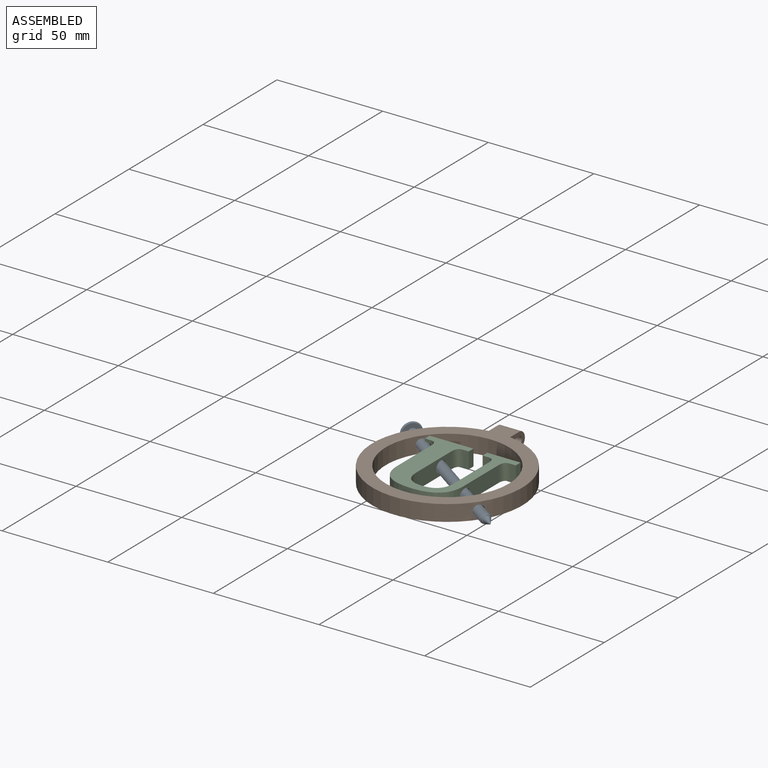
[diagram: assembled view]
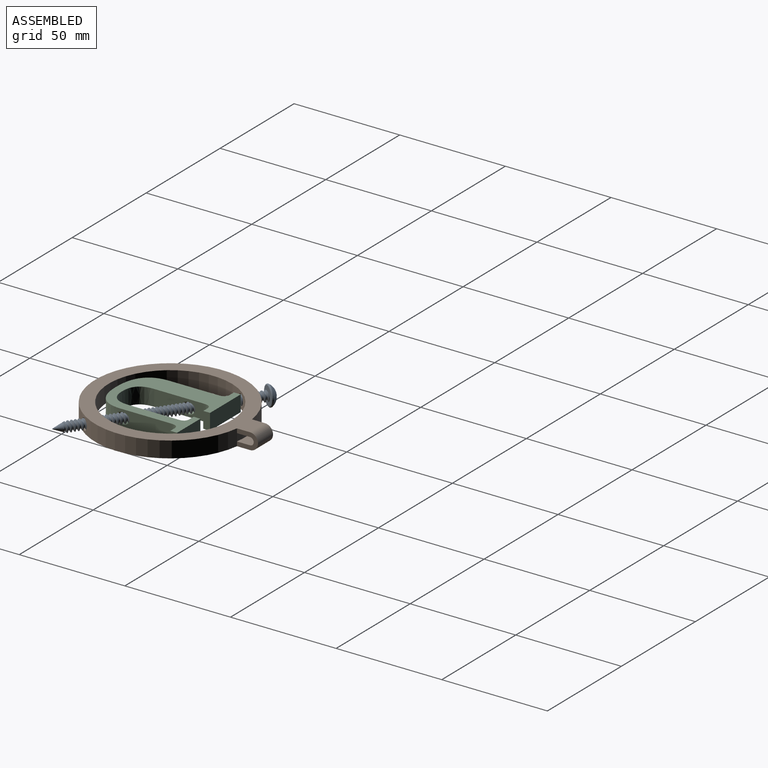
[diagram: assembled view, second angle]
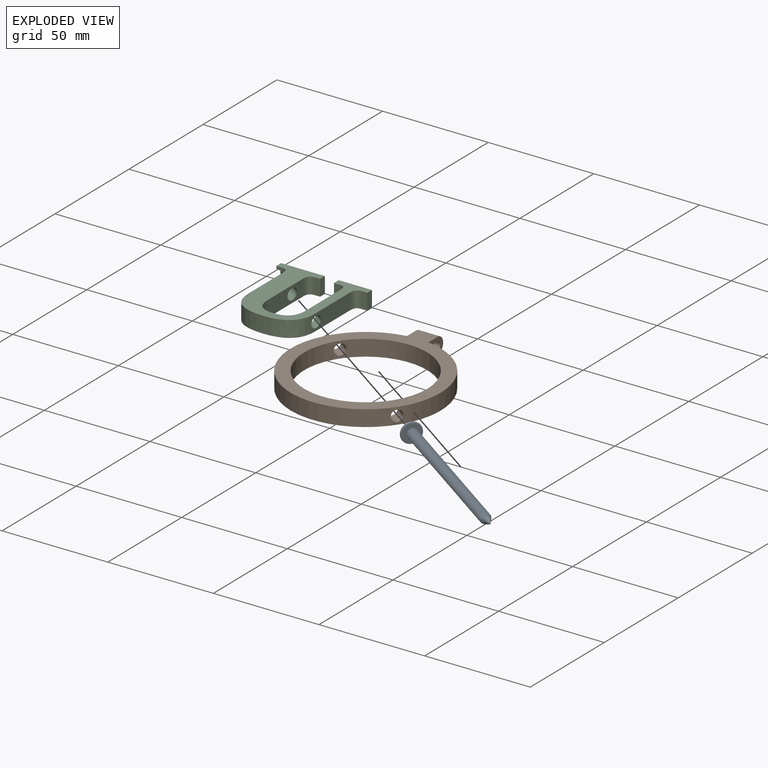
[diagram: exploded view]
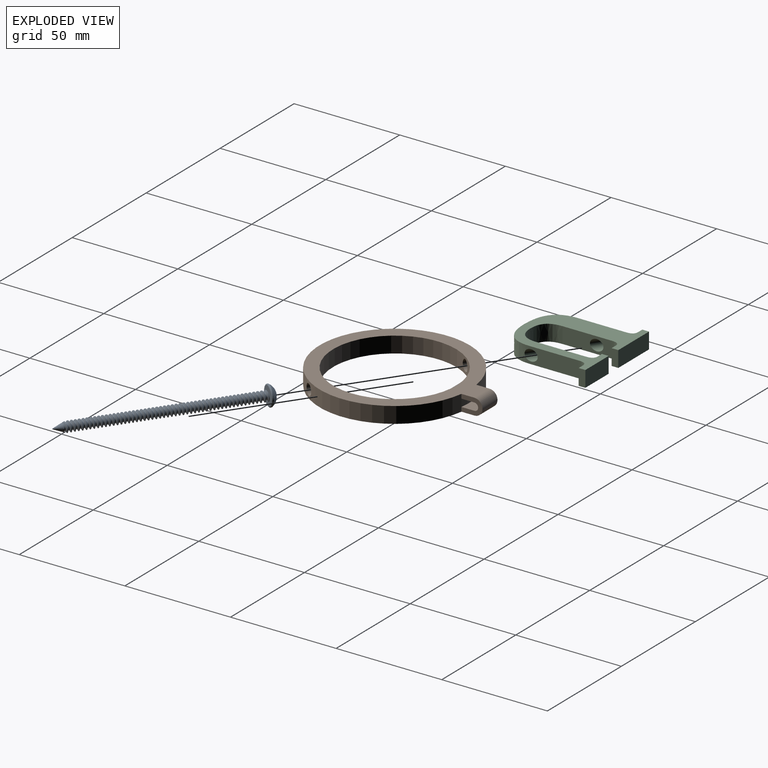
[diagram: exploded view, second angle]
ASSEMBLY  parts=3 mates=2
PART A: 136 faces, bbox 10.7x10.7x92.5 mm
  f0: cylinder r=1.55mm len=85.47mm, axis (0,0,-1), area 207.7mm2, adj f2,f3,f4,f5,f6,f9,f10,f11
  f1: cylinder r=2.41mm len=83.38mm, axis (0,0,-1), area 158mm2, adj f2,f4,f6,f9,f10,f11,f12,f13
  f2: bspline ~5.57x4.83mm, area 12.5mm2, adj f0,f1,f3,f109,f112
  f3: bspline ~5.57x4.83mm, area 4.8mm2, adj f0,f2,f112,f113
  f4: bspline ~5.57x4.83mm, area 8.5mm2, adj f0,f1,f5,f111,f112,f113
  f5: bspline ~4.88x4.83mm, area 1.4mm2, adj f0,f4,f113
  f6: plane 8.8x8.8mm, normal (0,0,-1), area 43.2mm2, adj f0,f1,f7,f11,f12
  f7: torus R=4.19mm, axis (0,0,-1), area 33.8mm2, adj f6,f8
  f8: sphere r=5.53mm, area 73.7mm2, adj f7,f115,f116,f117,f118,f119,f120,f122
  f9: bspline ~5.57x4.83mm, area 18.8mm2, adj f0,f1,f11,f13
  f10: bspline ~5.57x4.83mm, area 18.8mm2, adj f0,f1,f12,f14
  f11: bspline ~5.57x4.83mm, area 10.4mm2, adj f0,f1,f6,f9
  f12: bspline ~4.88x4.83mm, area 5.2mm2, adj f0,f1,f6,f10
  f13: bspline ~5.57x4.83mm, area 12.5mm2, adj f0,f1,f9,f15
  f14: bspline ~5.57x4.83mm, area 12.5mm2, adj f0,f1,f10,f16
  f15: bspline ~5.57x4.83mm, area 12.5mm2, adj f0,f1,f13,f17
  f16: bspline ~5.57x4.83mm, area 12.5mm2, adj f0,f1,f14,f18
  f17: bspline ~5.57x4.83mm, area 12.5mm2, adj f0,f1,f15,f19
  f18: bspline ~5.57x4.83mm, area 12.5mm2, adj f0,f1,f16,f20
  f19: bspline ~5.57x4.83mm, area 12.5mm2, adj f0,f1,f17,f21
  f20: bspline ~5.57x4.83mm, area 12.5mm2, adj f0,f1,f18,f22
  f21: bspline ~5.57x4.83mm, area 12.5mm2, adj f0,f1,f19,f23
  f22: bspline ~5.57x4.83mm, area 12.5mm2, adj f0,f1,f20,f24
  f23: bspline ~5.57x4.83mm, area 12.5mm2, adj f0,f1,f21,f25
  f24: bspline ~5.57x4.83mm, area 12.5mm2, adj f0,f1,f22,f26
  f25: bspline ~5.57x4.83mm, area 12.5mm2, adj f0,f1,f23,f27
  f26: bspline ~5.57x4.83mm, area 12.5mm2, adj f0,f1,f24,f28
  f27: bspline ~5.57x4.83mm, area 12.5mm2, adj f0,f1,f25,f29
  f28: bspline ~5.57x4.83mm, area 12.5mm2, adj f0,f1,f26,f30
  f29: bspline ~5.57x4.83mm, area 12.5mm2, adj f0,f1,f27,f31
  f30: bspline ~5.57x4.83mm, area 12.5mm2, adj f0,f1,f28,f32
  f31: bspline ~5.57x4.83mm, area 12.5mm2, adj f0,f1,f29,f33
  f32: bspline ~5.57x4.83mm, area 12.5mm2, adj f0,f1,f30,f34
  f33: bspline ~5.57x4.83mm, area 12.5mm2, adj f0,f1,f31,f35
  f34: bspline ~5.57x4.83mm, area 12.5mm2, adj f0,f1,f32,f36
  f35: bspline ~5.57x4.83mm, area 12.5mm2, adj f0,f1,f33,f37
  f36: bspline ~5.57x4.83mm, area 12.5mm2, adj f0,f1,f34,f38
  f37: bspline ~5.57x4.83mm, area 12.5mm2, adj f0,f1,f35,f39
  f38: bspline ~5.57x4.83mm, area 12.5mm2, adj f0,f1,f36,f40
  f39: bspline ~5.57x4.83mm, area 12.5mm2, adj f0,f1,f37,f41
  f40: bspline ~5.57x4.83mm, area 12.5mm2, adj f0,f1,f38,f42
  f41: bspline ~5.57x4.83mm, area 12.5mm2, adj f0,f1,f39,f43
  f42: bspline ~5.57x4.83mm, area 12.5mm2, adj f0,f1,f40,f44
  f43: bspline ~5.57x4.83mm, area 12.5mm2, adj f0,f1,f41,f45
  f44: bspline ~5.57x4.83mm, area 12.5mm2, adj f0,f1,f42,f46
  f45: bspline ~5.57x4.83mm, area 12.5mm2, adj f0,f1,f43,f47
  f46: bspline ~5.57x4.83mm, area 12.5mm2, adj f0,f1,f44,f48
  f47: bspline ~5.57x4.83mm, area 12.5mm2, adj f0,f1,f45,f49
  f48: bspline ~5.57x4.83mm, area 12.5mm2, adj f0,f1,f46,f50
  f49: bspline ~5.57x4.83mm, area 12.5mm2, adj f0,f1,f47,f51
  f50: bspline ~5.57x4.83mm, area 12.5mm2, adj f0,f1,f48,f52
  f51: bspline ~5.57x4.83mm, area 12.5mm2, adj f0,f1,f49,f53
  f52: bspline ~5.57x4.83mm, area 12.5mm2, adj f0,f1,f50,f54
  f53: bspline ~5.57x4.83mm, area 12.5mm2, adj f0,f1,f51,f55
  f54: bspline ~5.57x4.83mm, area 12.5mm2, adj f0,f1,f52,f56
  f55: bspline ~5.57x4.83mm, area 12.5mm2, adj f0,f1,f53,f57
  f56: bspline ~5.57x4.83mm, area 12.5mm2, adj f0,f1,f54,f58
  f57: bspline ~5.57x4.83mm, area 12.5mm2, adj f0,f1,f55,f59
  f58: bspline ~5.57x4.83mm, area 12.5mm2, adj f0,f1,f56,f60
  f59: bspline ~5.57x4.83mm, area 12.5mm2, adj f0,f1,f57,f61
  f60: bspline ~5.57x4.83mm, area 12.5mm2, adj f0,f1,f58,f62
  f61: bspline ~5.57x4.83mm, area 12.5mm2, adj f0,f1,f59,f63
  f62: bspline ~5.57x4.83mm, area 12.5mm2, adj f0,f1,f60,f64
  f63: bspline ~5.57x4.83mm, area 12.5mm2, adj f0,f1,f61,f65
  f64: bspline ~5.57x4.83mm, area 12.5mm2, adj f0,f1,f62,f66
  f65: bspline ~5.57x4.83mm, area 12.5mm2, adj f0,f1,f63,f67
  f66: bspline ~5.57x4.83mm, area 12.5mm2, adj f0,f1,f64,f68
  f67: bspline ~5.57x4.83mm, area 12.5mm2, adj f0,f1,f65,f69
  f68: bspline ~5.57x4.83mm, area 12.5mm2, adj f0,f1,f66,f70
  f69: bspline ~5.57x4.83mm, area 12.5mm2, adj f0,f1,f67,f71
  f70: bspline ~5.57x4.83mm, area 12.5mm2, adj f0,f1,f68,f72
  f71: bspline ~5.57x4.83mm, area 12.5mm2, adj f0,f1,f69,f73
  f72: bspline ~5.57x4.83mm, area 12.5mm2, adj f0,f1,f70,f74
  f73: bspline ~5.57x4.83mm, area 12.5mm2, adj f0,f1,f71,f75
  f74: bspline ~5.57x4.83mm, area 12.5mm2, adj f0,f1,f72,f76
  f75: bspline ~5.57x4.83mm, area 12.5mm2, adj f0,f1,f73,f77
  f76: bspline ~5.57x4.83mm, area 12.5mm2, adj f0,f1,f74,f78
  f77: bspline ~5.57x4.83mm, area 12.5mm2, adj f0,f1,f75,f79
  f78: bspline ~5.57x4.83mm, area 12.5mm2, adj f0,f1,f76,f80
  f79: bspline ~5.57x4.83mm, area 12.5mm2, adj f0,f1,f77,f81
  f80: bspline ~5.57x4.83mm, area 12.5mm2, adj f0,f1,f78,f82
  f81: bspline ~5.57x4.83mm, area 12.5mm2, adj f0,f1,f79,f83
  f82: bspline ~5.57x4.83mm, area 12.5mm2, adj f0,f1,f80,f84
  f83: bspline ~5.57x4.83mm, area 12.5mm2, adj f0,f1,f81,f85
  f84: bspline ~5.57x4.83mm, area 12.5mm2, adj f0,f1,f82,f86
  f85: bspline ~5.57x4.83mm, area 12.5mm2, adj f0,f1,f83,f87
  f86: bspline ~5.57x4.83mm, area 12.5mm2, adj f0,f1,f84,f88
  f87: bspline ~5.57x4.83mm, area 12.5mm2, adj f0,f1,f85,f89
  f88: bspline ~5.57x4.83mm, area 12.5mm2, adj f0,f1,f86,f90
  f89: bspline ~5.57x4.83mm, area 12.5mm2, adj f0,f1,f87,f91
  f90: bspline ~5.57x4.83mm, area 12.5mm2, adj f0,f1,f88,f92
  f91: bspline ~5.57x4.83mm, area 12.5mm2, adj f0,f1,f89,f93
  f92: bspline ~5.57x4.83mm, area 12.5mm2, adj f0,f1,f90,f94
  f93: bspline ~5.57x4.83mm, area 12.5mm2, adj f0,f1,f91,f95
  f94: bspline ~5.57x4.83mm, area 12.5mm2, adj f0,f1,f92,f96
  f95: bspline ~5.57x4.83mm, area 12.5mm2, adj f0,f1,f93,f97
  f96: bspline ~5.57x4.83mm, area 12.5mm2, adj f0,f1,f94,f98
  f97: bspline ~5.57x4.83mm, area 12.5mm2, adj f0,f1,f95,f99
  f98: bspline ~5.57x4.83mm, area 12.5mm2, adj f0,f1,f96,f100
  f99: bspline ~5.57x4.83mm, area 12.5mm2, adj f0,f1,f97,f101
  f100: bspline ~5.57x4.83mm, area 12.5mm2, adj f0,f1,f98,f102
  f101: bspline ~5.57x4.83mm, area 12.5mm2, adj f0,f1,f99,f103
  f102: bspline ~5.57x4.83mm, area 12.5mm2, adj f0,f1,f100,f104
  f103: bspline ~5.57x4.83mm, area 12.5mm2, adj f0,f1,f101,f105
  f104: bspline ~5.57x4.83mm, area 12.5mm2, adj f0,f1,f102,f106
  f105: bspline ~5.57x4.83mm, area 12.5mm2, adj f0,f1,f103,f107
  f106: bspline ~5.57x4.83mm, area 12.5mm2, adj f0,f1,f104,f108
  f107: bspline ~5.57x4.83mm, area 12.5mm2, adj f0,f1,f105,f109
  f108: bspline ~5.57x4.83mm, area 12.5mm2, adj f0,f1,f106,f110
  f109: bspline ~5.57x4.83mm, area 12.5mm2, adj f0,f1,f2,f107
  f110: bspline ~5.57x4.83mm, area 12.5mm2, adj f0,f1,f108,f111
  f111: bspline ~5.57x4.83mm, area 12.5mm2, adj f0,f1,f4,f110
  f112: cone r=2.41mm half-angle=22.5deg, axis (0,0,1), area 5.7mm2, adj f1,f2,f3,f4,f113
  f113: cone r=2.41mm half-angle=22.5deg, axis (0,0,1), area 25.5mm2, adj f0,f3,f4,f5,f112,f114
  f114: plane 0.25x0.25mm, normal (0,0,-1), area 0.1mm2, adj f113
  f115: cone r=3.16mm half-angle=25deg, axis (0,0,1), area 0.4mm2, adj f8,f116,f121,f126
  f116: plane 0.98x0.83mm, normal (-0.98,0,0.17), area 0.5mm2, adj f8,f115,f117,f121
  f117: plane 1.18x1.12mm, normal (-0.91,-0.38,0.17), area 0.9mm2, adj f8,f116,f118,f121
  f118: plane 1.18x1.12mm, normal (-0.38,-0.91,0.17), area 0.9mm2, adj f8,f117,f119,f121
  f119: plane 0.98x0.83mm, normal (0,-0.98,0.17), area 0.5mm2, adj f8,f118,f120,f121
  f120: cone r=3.16mm half-angle=25deg, axis (0,0,1), area 0.4mm2, adj f8,f119,f121,f132
  f121: plane 5.27x5.27mm, normal (0,0,1), area 10.6mm2, adj f115,f116,f117,f118,f119,f120,f122,f123
  f122: cone r=3.16mm half-angle=25deg, axis (0,0,1), area 0.4mm2, adj f8,f121,f123,f131
  f123: plane 0.98x0.83mm, normal (0,-0.98,0.17), area 0.5mm2, adj f8,f121,f122,f124
  f124: plane 1.18x1.12mm, normal (0.38,-0.91,0.17), area 0.9mm2, adj f8,f121,f123,f125
  f125: plane 1.18x1.12mm, normal (0.91,-0.38,0.17), area 0.9mm2, adj f8,f121,f124,f126
  f126: plane 0.98x0.83mm, normal (0.98,0,0.17), area 0.5mm2, adj f8,f115,f121,f125
  f127: cone r=3.16mm half-angle=25deg, axis (0,0,1), area 0.4mm2, adj f8,f121,f128,f135
  f128: plane 0.98x0.83mm, normal (0.98,0,0.17), area 0.5mm2, adj f8,f121,f127,f129
  f129: plane 1.18x1.12mm, normal (0.91,0.38,0.17), area 0.9mm2, adj f8,f121,f128,f130
  f130: plane 1.18x1.12mm, normal (0.38,0.91,0.17), area 0.9mm2, adj f8,f121,f129,f131
  f131: plane 0.98x0.83mm, normal (0,0.98,0.17), area 0.5mm2, adj f8,f121,f122,f130
  f132: plane 0.98x0.83mm, normal (0,0.98,0.17), area 0.5mm2, adj f8,f120,f121,f133
  f133: plane 1.18x1.12mm, normal (-0.38,0.91,0.17), area 0.9mm2, adj f8,f121,f132,f134
  f134: plane 1.18x1.12mm, normal (-0.91,0.38,0.17), area 0.9mm2, adj f8,f121,f133,f135
  f135: plane 0.98x0.83mm, normal (-0.98,0,0.17), area 0.5mm2, adj f8,f121,f127,f134
PART B: 12 faces, bbox 71x80.6x7.6 mm
  f0: cylinder r=35.5mm len=71mm, axis (0,0,-1), area 1615.7mm2, adj f2,f3,f4,f5,f6,f7,f8,f9
  f1: cylinder r=29.15mm len=58.3mm, axis (0,0,-1), area 1353.1mm2, adj f2,f3,f4,f5
  f2: plane 76.78x71mm, normal (0,0,1), area 1349.7mm2, adj f0,f1,f6,f7,f11
  f3: plane 76.78x71mm, normal (0,0,-1), area 1349.7mm2, adj f0,f1,f6,f7,f11
  f4: cylinder r=2.6mm len=8.28mm, axis (-0.82,0.57,0), area 104mm2, adj f0,f1
  f5: cylinder r=2.6mm len=8.28mm, axis (-0.82,0.57,0), area 104mm2, adj f0,f1
  f6: plane 9.96x7.62mm, normal (1,0,0), area 42.8mm2, adj f0,f2,f3,f8,f9,f10,f11
  f7: plane 9.96x7.62mm, normal (-1,0,0), area 42.8mm2, adj f0,f2,f3,f8,f9,f10,f11
  f8: plane 10.16x6.15mm, normal (0,0,-1), area 60mm2, adj f0,f6,f7,f10
  f9: plane 10.16x6.15mm, normal (0,0,1), area 60mm2, adj f0,f6,f7,f10
  f10: cylinder r=1.78mm len=10.16mm, axis (1,0,0), area 56.8mm2, adj f6,f7,f8,f9
  f11: cylinder r=3.81mm len=10.16mm, axis (1,0,0), area 121.6mm2, adj f2,f3,f6,f7
PART C: 55 faces, bbox 46.2x43.7x7.8 mm
  f0: plane 2.74x2.03mm, normal (0,-1,0), area 3.8mm2, adj f1,f30,f52,f54
  f1: extruded ~2.59x1.16mm, area 2.6mm2, adj f0,f2,f52,f54
  f2: extruded ~2.89x0.97mm, area 3mm2, adj f1,f3,f52,f54
  f3: extruded ~2.89x1.1mm, area 3.2mm2, adj f2,f4,f52,f54
  f4: extruded ~2.06x1.92mm, area 3.2mm2, adj f3,f36,f52,f54
  f5: plane 7.62x3.18mm, normal (1,0,0), area 24.2mm2, adj f6,f50,f51,f52
  f6: plane 15.76x7.62mm, normal (0,1,0), area 120.1mm2, adj f5,f7,f51,f52
  f7: plane 7.62x3.18mm, normal (-1,0,0), area 24.2mm2, adj f6,f8,f51,f52
  f8: plane 7.62x2.53mm, normal (0,-1,0), area 19.3mm2, adj f7,f9,f51,f52
  f9: extruded ~7.62x1.18mm, area 9mm2, adj f8,f10,f51,f52
  f10: extruded ~7.62x0.98mm, area 8.5mm2, adj f9,f11,f51,f52
  f11: extruded ~7.62x1.1mm, area 9.9mm2, adj f10,f12,f51,f52
  f12: extruded ~7.62x1.92mm, area 14.8mm2, adj f11,f13,f51,f52
  f13: plane 23.61x7.62mm, normal (-1,0,0), area 153.9mm2, adj f12,f14,f51,f52,f53
  f14: extruded ~7.62x3.97mm, area 30.7mm2, adj f13,f15,f51,f52
  f15: extruded ~7.62x2.77mm, area 25.2mm2, adj f14,f16,f51,f52
  f16: extruded ~7.62x2.75mm, area 24.5mm2, adj f15,f17,f51,f52
  f17: extruded ~7.62x3.61mm, area 27.9mm2, adj f16,f18,f51,f52
  f18: extruded ~7.62x3.71mm, area 28.5mm2, adj f17,f19,f51,f52
  f19: extruded ~7.62x2.82mm, area 24.6mm2, adj f18,f20,f51,f52
  f20: extruded ~7.62x2.76mm, area 25.4mm2, adj f19,f21,f51,f52
  f21: extruded ~7.62x4.25mm, area 32.9mm2, adj f20,f22,f51,f52
  f22: plane 23.26x7.62mm, normal (1,0,0), area 151.2mm2, adj f21,f23,f51,f52,f54
  f23: extruded ~7.62x2.06mm, area 15.8mm2, adj f22,f24,f51,f52
  f24: extruded ~7.62x1.18mm, area 10.4mm2, adj f23,f25,f51,f52
  f25: extruded ~7.62x0.98mm, area 8.7mm2, adj f24,f26,f51,f52
  f26: extruded ~7.62x1.18mm, area 9.1mm2, adj f25,f27,f51,f52
  f27: plane 7.62x2.52mm, normal (0,-1,0), area 19.2mm2, adj f26,f28,f51,f52
  f28: plane 7.62x3.18mm, normal (1,0,0), area 24.2mm2, adj f27,f29,f51,f52
  f29: plane 20.75x7.62mm, normal (0,1,0), area 158.1mm2, adj f28,f30,f51,f52
  f30: plane 7.62x3.18mm, normal (-1,0,0), area 12.9mm2, adj f0,f29,f31,f51,f52,f54
  f31: plane 2.74x2.03mm, normal (0,-1,0), area 3.8mm2, adj f30,f32,f51,f54
  f32: extruded ~2.59x1.16mm, area 2.6mm2, adj f31,f33,f51,f54
  f33: extruded ~2.89x0.97mm, area 3mm2, adj f32,f34,f51,f54
  f34: extruded ~2.89x1.1mm, area 3.2mm2, adj f33,f35,f51,f54
  f35: extruded ~2.06x1.92mm, area 3.2mm2, adj f34,f36,f51,f54
  f36: plane 23.02x7.62mm, normal (-1,0,0), area 159.3mm2, adj f4,f35,f37,f51,f52,f54
  f37: extruded ~7.62x6.31mm, area 49.2mm2, adj f36,f38,f51,f52
  f38: extruded ~7.62x4.25mm, area 41.3mm2, adj f37,f39,f51,f52
  f39: extruded ~7.62x5.25mm, area 44.3mm2, adj f38,f40,f51,f52
  f40: extruded ~7.62x7.04mm, area 54.1mm2, adj f39,f41,f51,f52
  f41: extruded ~7.62x6.79mm, area 52.4mm2, adj f40,f42,f51,f52
  f42: extruded ~7.62x4.69mm, area 41.1mm2, adj f41,f43,f51,f52
  f43: extruded ~7.62x4.09mm, area 37.7mm2, adj f42,f44,f51,f52
  f44: extruded ~7.62x5.44mm, area 34.1mm2, adj f43,f45,f51,f52,f53
  f45: plane 23.49x7.62mm, normal (1,0,0), area 161.4mm2, adj f44,f46,f51,f52,f53
  f46: extruded ~7.62x2.06mm, area 15.8mm2, adj f45,f47,f51,f52
  f47: extruded ~7.62x1.18mm, area 10.4mm2, adj f46,f48,f51,f52
  f48: extruded ~7.62x0.99mm, area 8.7mm2, adj f47,f49,f51,f52
  f49: extruded ~7.62x1.17mm, area 9mm2, adj f48,f50,f51,f52
  f50: plane 7.62x2.59mm, normal (0,-1,0), area 19.7mm2, adj f5,f49,f51,f52
  f51: plane 43.58x43.04mm, normal (0,0,-1), area 722.1mm2, adj f5,f6,f7,f8,f9,f10,f11,f12
  f52: plane 43.58x43.04mm, normal (0,0,1), area 722.1mm2, adj f0,f1,f2,f3,f4,f5,f6,f7
  f53: cylinder r=2.6mm len=10.38mm, axis (-0.82,0.57,0), area 89.9mm2, adj f13,f44,f45
  f54: cylinder r=2.6mm len=21.16mm, axis (-0.82,0.57,0), area 220.6mm2, adj f0,f1,f2,f3,f4,f22,f30,f31
PLACE A rot(axis=(-0.69,0.22,0.69),155.4deg) t=(-63.36,3.29,4.66)mm
PLACE B t=(-30.39,-19.79,0.85)mm
PLACE C t=(-30.39,-19.79,0.85)mm
MATE cylindrical A.f0 <-> B.f4  axis (0.82,-0.57,0) through (-64.05,3.78,4.66)mm
MATE cylindrical A.f0 <-> C.f53  axis (0.82,-0.57,0) through (-64.05,3.78,4.66)mm
